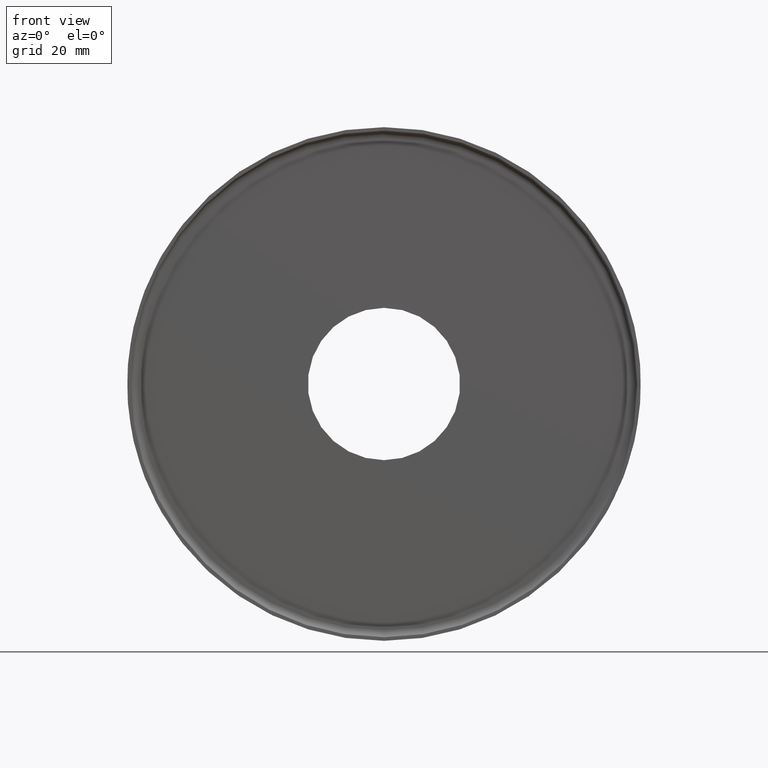
[diagram: clean part render]
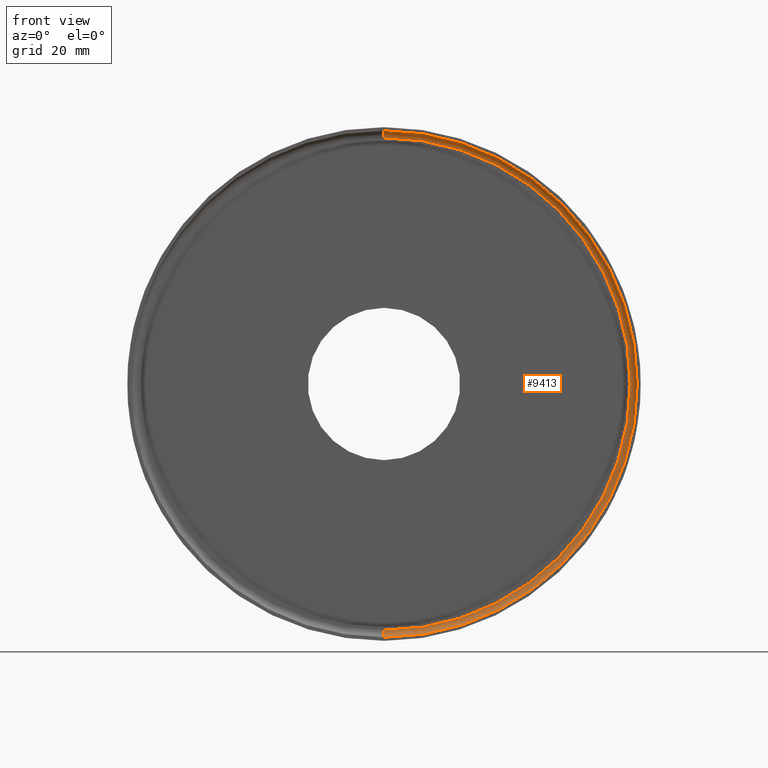
[diagram: same view with one face highlighted and labeled with its STEP entity id]
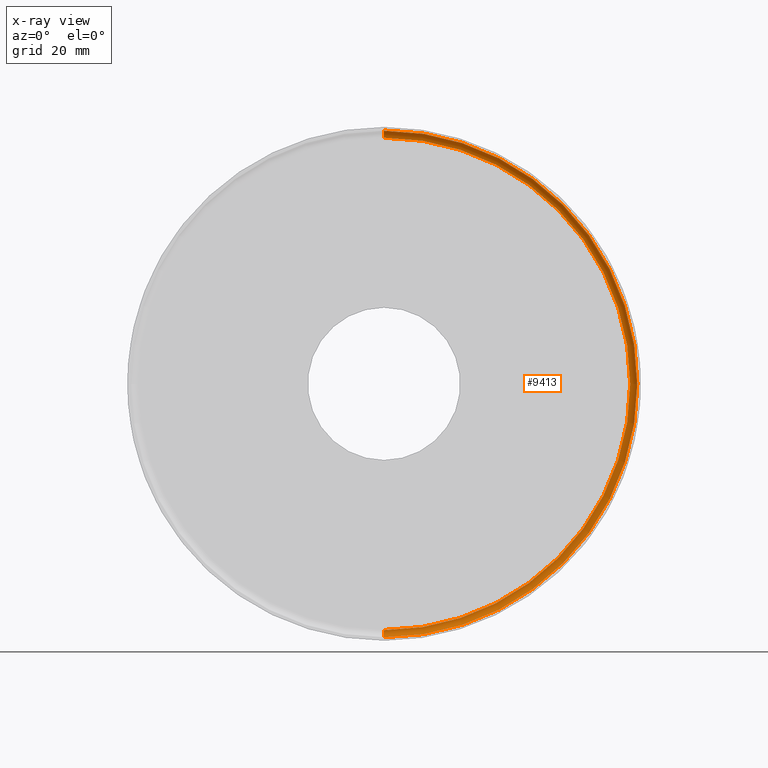
[diagram: x-ray of the same camera — body ghosted, the highlighted face saturated]
A machine part, front view. The second image highlights one B-rep face of the part: STEP entity #9413.
The next image is the same camera in x-ray: the body ghosted, the highlighted face saturated — about 0% of this face is hidden behind the body in this view.
In plain terms, the highlighted toroidal blend (fillet) surface has major radius 69.5 mm and minor (blend) radius 2 mm.
Its self-contained STEP definition (entity closure, byte-faithful):
#373 = CARTESIAN_POINT ( 'NONE',  ( 8.511295254074103841E-15, 22.00000000000000355, 69.49999999999998579 ) ) ;
#623 = VERTEX_POINT ( 'NONE', #10313 ) ;
#1087 = CARTESIAN_POINT ( 'NONE',  ( 0.000000000000000000, 24.00000000000000000, 0.000000000000000000 ) ) ;
#1618 = ORIENTED_EDGE ( 'NONE', *, *, #11143, .F. ) ;
#2472 = DIRECTION ( 'NONE',  ( -0.000000000000000000, -1.000000000000000000, -0.000000000000000000 ) ) ;
#3956 = EDGE_CURVE ( 'NONE', #13913, #13672, #13556, .T. ) ;
#4056 = DIRECTION ( 'NONE',  ( 0.000000000000000000, 0.000000000000000000, -1.000000000000000000 ) ) ;
#4125 = AXIS2_PLACEMENT_3D ( 'NONE', #12706, #2472, #15270 ) ;
#4456 = DIRECTION ( 'NONE',  ( -1.224646799147349509E-16, 0.000000000000000000, -1.000000000000000000 ) ) ;
#4884 = AXIS2_PLACEMENT_3D ( 'NONE', #1087, #14087, #14032 ) ;
#4996 = DIRECTION ( 'NONE',  ( 0.000000000000000000, 0.000000000000000000, 1.000000000000000000 ) ) ;
#5005 = FACE_OUTER_BOUND ( 'NONE', #14370, .T. ) ;
#5281 = ORIENTED_EDGE ( 'NONE', *, *, #3956, .F. ) ;
#6157 = ORIENTED_EDGE ( 'NONE', *, *, #15561, .T. ) ;
#7517 = CARTESIAN_POINT ( 'NONE',  ( 8.756224613903574137E-15, 22.00000000000000355, 71.50000000000000000 ) ) ;
#7627 = TOROIDAL_SURFACE ( 'NONE', #12759, 69.49999999999998579, 2.000000000000000000 ) ;
#7768 = EDGE_CURVE ( 'NONE', #623, #12772, #13104, .T. ) ;
#9413 = ADVANCED_FACE ( 'NONE', ( #5005 ), #7627, .F. ) ;
#10313 = CARTESIAN_POINT ( 'NONE',  ( 0.000000000000000000, 24.00000000000000000, -69.49999999999998579 ) ) ;
#10450 = CARTESIAN_POINT ( 'NONE',  ( 0.000000000000000000, 22.00000000000000355, 0.000000000000000000 ) ) ;
#10837 = CARTESIAN_POINT ( 'NONE',  ( 0.000000000000000000, 22.00000000000000355, -71.50000000000000000 ) ) ;
#11143 = EDGE_CURVE ( 'NONE', #623, #13913, #15303, .T. ) ;
#12706 = CARTESIAN_POINT ( 'NONE',  ( 0.000000000000000000, 22.00000000000000355, 0.000000000000000000 ) ) ;
#12717 = DIRECTION ( 'NONE',  ( -1.000000000000000000, 0.000000000000000000, 0.000000000000000000 ) ) ;
#12759 = AXIS2_PLACEMENT_3D ( 'NONE', #10450, #15645, #4056 ) ;
#12772 = VERTEX_POINT ( 'NONE', #10837 ) ;
#13010 = CIRCLE ( 'NONE', #4125, 71.50000000000000000 ) ;
#13104 = CIRCLE ( 'NONE', #16661, 2.000000000000001776 ) ;
#13421 = CARTESIAN_POINT ( 'NONE',  ( 8.633759933988838989E-15, 24.00000000000000000, 69.49999999999998579 ) ) ;
#13439 = DIRECTION ( 'NONE',  ( 1.000000000000000000, 0.000000000000000000, -1.224646799147353207E-16 ) ) ;
#13556 = CIRCLE ( 'NONE', #15446, 2.000000000000001776 ) ;
#13672 = VERTEX_POINT ( 'NONE', #7517 ) ;
#13913 = VERTEX_POINT ( 'NONE', #13421 ) ;
#14032 = DIRECTION ( 'NONE',  ( 0.000000000000000000, 0.000000000000000000, -1.000000000000000000 ) ) ;
#14087 = DIRECTION ( 'NONE',  ( -0.000000000000000000, -1.000000000000000000, -0.000000000000000000 ) ) ;
#14370 = EDGE_LOOP ( 'NONE', ( #5281, #1618, #16297, #6157 ) ) ;
#15270 = DIRECTION ( 'NONE',  ( 0.000000000000000000, 0.000000000000000000, -1.000000000000000000 ) ) ;
#15303 = CIRCLE ( 'NONE', #4884, 69.49999999999998579 ) ;
#15446 = AXIS2_PLACEMENT_3D ( 'NONE', #373, #13439, #4456 ) ;
#15561 = EDGE_CURVE ( 'NONE', #12772, #13672, #13010, .T. ) ;
#15645 = DIRECTION ( 'NONE',  ( -0.000000000000000000, -1.000000000000000000, -0.000000000000000000 ) ) ;
#16297 = ORIENTED_EDGE ( 'NONE', *, *, #7768, .T. ) ;
#16463 = CARTESIAN_POINT ( 'NONE',  ( 0.000000000000000000, 22.00000000000000355, -69.49999999999998579 ) ) ;
#16661 = AXIS2_PLACEMENT_3D ( 'NONE', #16463, #12717, #4996 ) ;